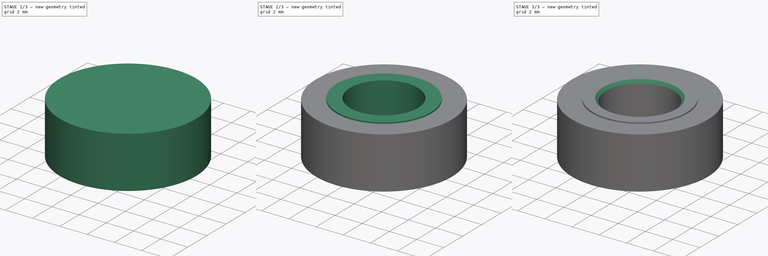
[diagram: build sequence overview — one tinted view per stage of 3, left to right]
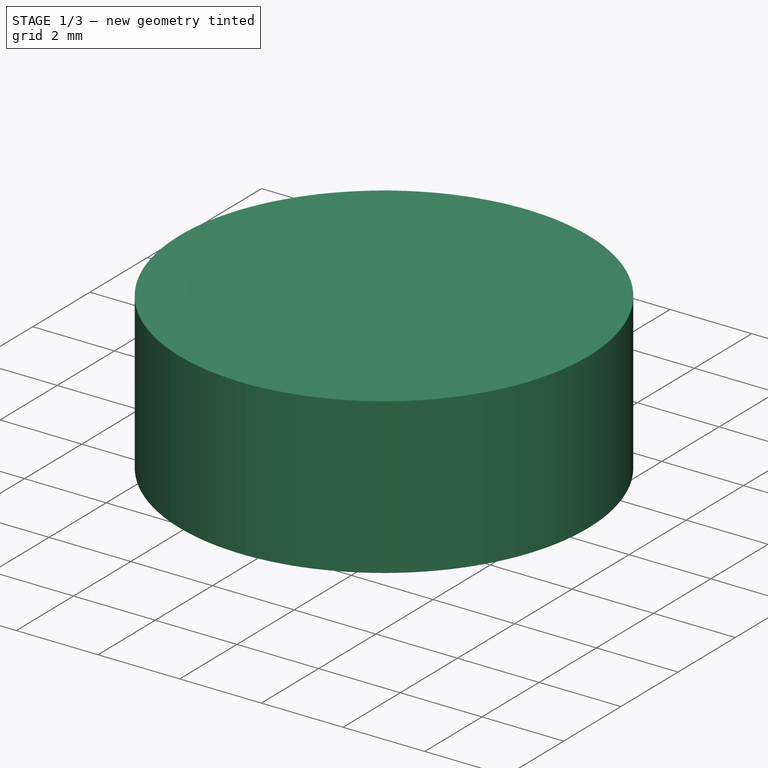
[diagram: stage 1 of 3 — iso view after this stage's code; geometry added in this stage tinted green]
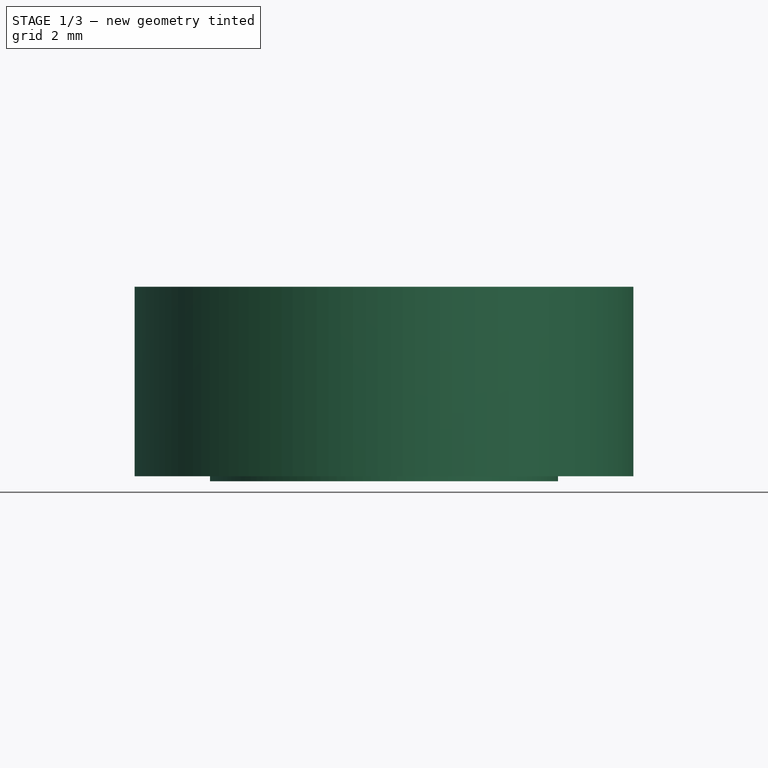
[diagram: stage 1 of 3 — front view after this stage's code; geometry added in this stage tinted green]
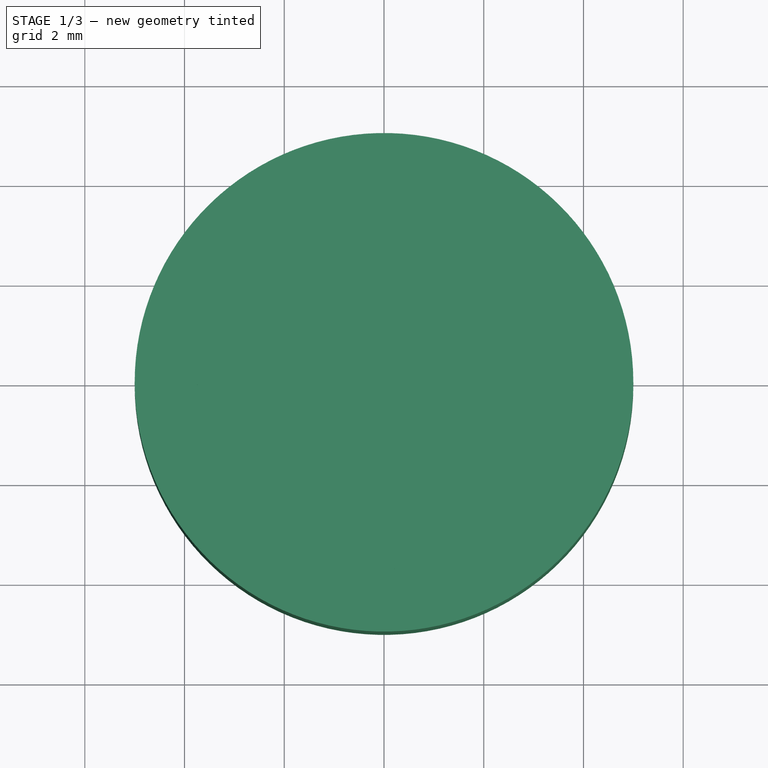
[diagram: stage 1 of 3 — top view after this stage's code; geometry added in this stage tinted green]
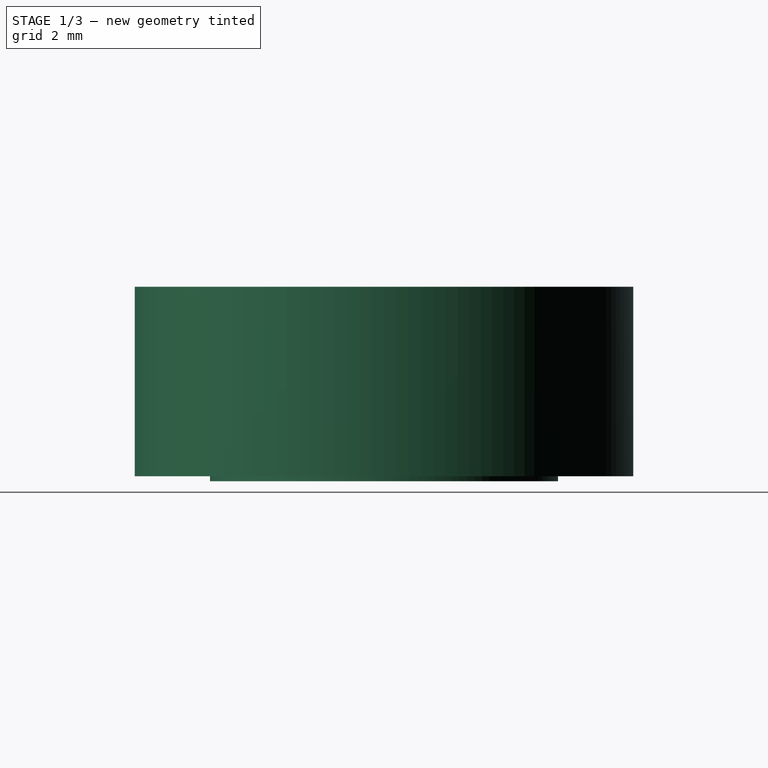
[diagram: stage 1 of 3 — right view after this stage's code; geometry added in this stage tinted green]
FCSTD DOCUMENT  (FreeCAD 0.14R3310 (Git))
Label: 61. RODAMIENTO MP2453 (RADIAL BALL BEARINGS 7804K136)
License: CC-BY 3.0
LicenseURL: http://creativecommons.org/licenses/by/3.0/
objects: Sketcher::SketchObject×5, PartDesign::Revolution×2, PartDesign::Pad×2, Part::Sphere×1, Part::FeaturePython×1, PartDesign::Pocket×1, PartDesign::Chamfer×1
note: 18 computed .brp shape members not serialized (recipe doc carries the construction recipe); baked Part::Feature solids carry a one-line shape summary decoded from their .brp

FEATURE [Sketcher::SketchObject] Sketch
  Placement = pos=(0,0,0) rot=(-1,0,0;4.71239rad)
  sketch-geometry (7):
    g0: LineSegment StartX=0 StartY=1.9 StartZ=0 EndX=-3.75 EndY=1.9 EndZ=0
    g1: LineSegment [constr] StartX=-3.75 StartY=1.9 StartZ=0 EndX=-3.75 EndY=-1.9 EndZ=0
    g2: LineSegment StartX=-3.75 StartY=-1.9 StartZ=0 EndX=0 EndY=-1.9 EndZ=0
    g3: LineSegment StartX=0 StartY=-1.9 StartZ=0 EndX=0 EndY=1.9 EndZ=0
    g4: ArcOfCircle CenterX=-3.75 CenterY=0 CenterZ=0 NormalX=0 NormalY=0 NormalZ=1 Radius=0.94 StartAngle=4.71239 EndAngle=7.85398
    g5: LineSegment StartX=-3.75 StartY=1.9 StartZ=0 EndX=-3.75 EndY=0.94 EndZ=0
    g6: LineSegment StartX=-3.75 StartY=-0.94 StartZ=0 EndX=-3.75 EndY=-1.9 EndZ=0
  constraints (21):
    c: PointOnObject(g0,g-2)
    c: Horizontal(g0)
    c: Coincident(g0,g1)
    c: Vertical(g1)
    c: Coincident(g1,g2)
    c: PointOnObject(g2,g-2)
    c: Coincident(g2,g3)
    c: Coincident(g3,g0)
    c: Horizontal(g2)
    c: Symmetric(g1,g0,g-1)
    c: Distance(g1) = 3.8
    c: PointOnObject(g4,g1)
    c: PointOnObject(g4,g1)
    c: PointOnObject(g4,g1)
    c: PointOnObject(g4,g-1)
    c: Radius(g4) = 0.94
    c: Distance(g-1,g1) = 3.75
    c: Coincident(g5,g0)
    c: Coincident(g5,g4)
    c: Coincident(g6,g4)
    c: Coincident(g6,g1)
FEATURE [PartDesign::Revolution] Revolution
  Angle = 360
  Axis = (0,0,1)
  Base = (0,0,0)
  Placement = pos=(0,0,0) rot=(-1,0,0;4.71239rad)
  ReferenceAxis = -> Sketch [V_Axis]
  Sketch = -> Sketch
FEATURE [Sketcher::SketchObject] Sketch002
  Placement = pos=(0,0,-1.9) rot=(1,0,0;3.14159rad)
  Support = -> Revolution [Face2]
  sketch-geometry (1):
    g0: Circle CenterX=0 CenterY=0 CenterZ=0 NormalX=0 NormalY=0 NormalZ=1 Radius=3.49
  constraints (2):
    c: Coincident(g0,g-1)
    c: Radius(g0) = 3.49
FEATURE [PartDesign::Pad] Pad
  Length = 0.1
  Length2 = 100
  Placement = pos=(0,0,0) rot=(-1,0,0;4.71239rad)
  Sketch = -> Sketch002
  Type = 0
FEATURE [Sketcher::SketchObject] Sketch005
  Placement = pos=(0,0,0) rot=(1,0,0;1.5708rad)
  sketch-geometry (6):
    g0: LineSegment StartX=-3.75 StartY=1.9 StartZ=0 EndX=-3.75 EndY=0.94 EndZ=0
    g1: LineSegment StartX=-3.75 StartY=1.9 StartZ=0 EndX=-5 EndY=1.9 EndZ=0
    g2: LineSegment StartX=-5 StartY=1.9 StartZ=0 EndX=-5 EndY=-1.9 EndZ=0
    g3: LineSegment StartX=-3.75 StartY=-1.9 StartZ=0 EndX=-3.75 EndY=-0.94 EndZ=0
    g4: ArcOfCircle CenterX=-3.75 CenterY=0 CenterZ=0 NormalX=0 NormalY=0 NormalZ=1 Radius=0.94 StartAngle=1.5708 EndAngle=4.71239
    g5: LineSegment StartX=-3.75 StartY=-1.9 StartZ=0 EndX=-5 EndY=-1.9 EndZ=0
  constraints (19):
    c: Vertical(g0)
    c: Coincident(g0,g1)
    c: Horizontal(g1)
    c: Coincident(g1,g2)
    c: Vertical(g2)
    c: Vertical(g3)
    c: PointOnObject(g4,g-1)
    c: Coincident(g4,g0)
    c: Coincident(g4,g3)
    c: DistanceX(g-2,g4) = -3.75
    c: Radius(g4) = 0.94
    c: DistanceX(g-2,g0) = -3.75
    c: DistanceX(g-2,g3) = -3.75
    c: Symmetric(g0,g3,g-1)
    c: Distance(g0,g3) = 3.8
    c: Coincident(g5,g3)
    c: Coincident(g5,g2)
    c: Horizontal(g5)
    c: DistanceX(g-2,g1) = -5
FEATURE [PartDesign::Revolution] Revolution001
  Angle = 360
  Axis = (0,0,1)
  Base = (0,0,0)
  Placement = pos=(0,0,0) rot=(1,0,0;1.5708rad)
  ReferenceAxis = -> Sketch005 [V_Axis]
  Sketch = -> Sketch005
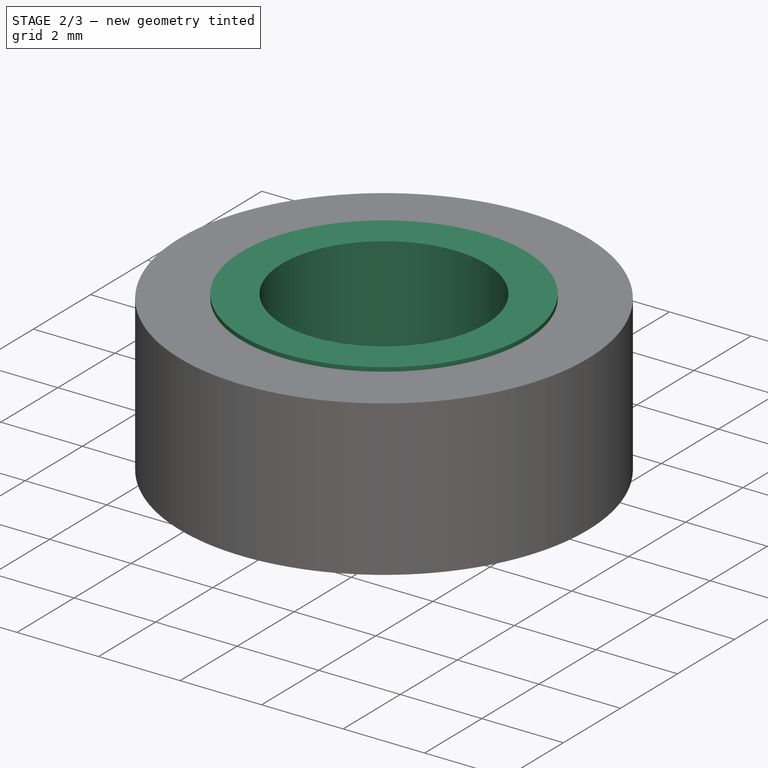
[diagram: stage 2 of 3 — iso view after this stage's code; geometry added in this stage tinted green]
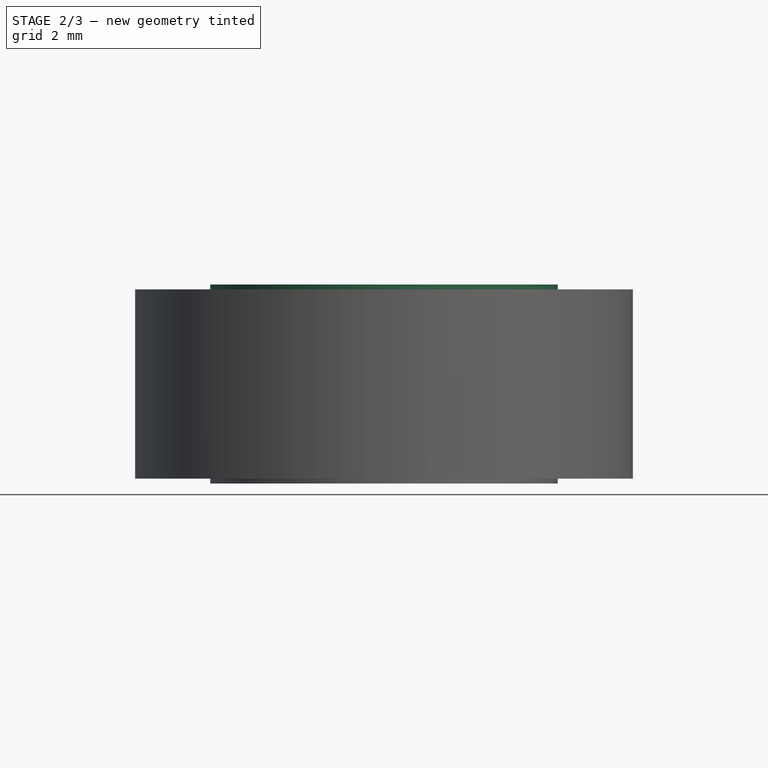
[diagram: stage 2 of 3 — front view after this stage's code; geometry added in this stage tinted green]
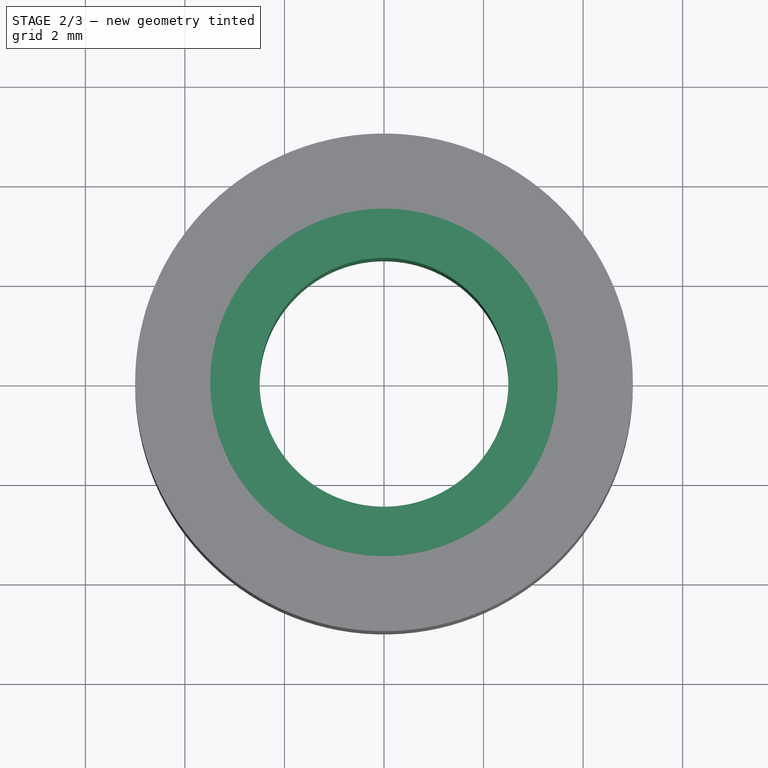
[diagram: stage 2 of 3 — top view after this stage's code; geometry added in this stage tinted green]
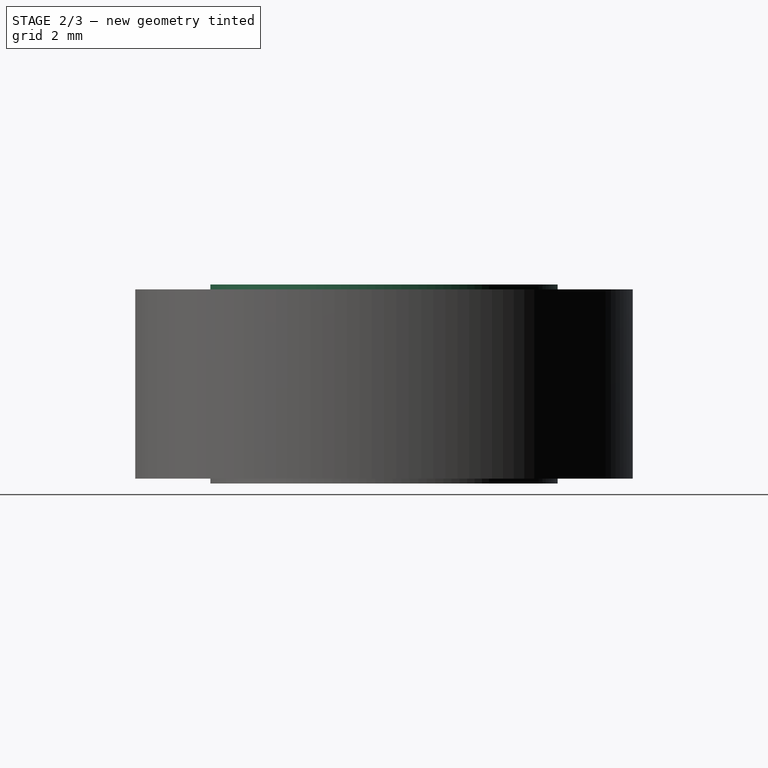
[diagram: stage 2 of 3 — right view after this stage's code; geometry added in this stage tinted green]
FEATURE [Sketcher::SketchObject] Sketch003
  Placement = pos=(0,0,1.9) rot=(0,0,1;3.14159rad)
  Support = -> Pad [Face6]
  sketch-geometry (1):
    g0: Circle CenterX=0 CenterY=0 CenterZ=0 NormalX=0 NormalY=0 NormalZ=1 Radius=3.49
  constraints (2):
    c: Coincident(g0,g-1)
    c: Radius(g0) = 3.49
FEATURE [PartDesign::Pad] Pad001
  Length = 0.1
  Length2 = 100
  Placement = pos=(0,0,0) rot=(-1,0,0;4.71239rad)
  Sketch = -> Sketch003
  Type = 0
FEATURE [Sketcher::SketchObject] Sketch004
  Placement = pos=(0,0,2) rot=(0,0,1;3.14159rad)
  Support = -> Pad001 [Face9]
  sketch-geometry (1):
    g0: Circle CenterX=0 CenterY=0 CenterZ=0 NormalX=0 NormalY=0 NormalZ=1 Radius=2.5
  constraints (2):
    c: Coincident(g0,g-1)
    c: Radius(g0) = 2.5
FEATURE [PartDesign::Pocket] Pocket
  Length = 5
  Placement = pos=(0,0,0) rot=(-1,0,0;4.71239rad)
  Sketch = -> Sketch004
  Type = 0
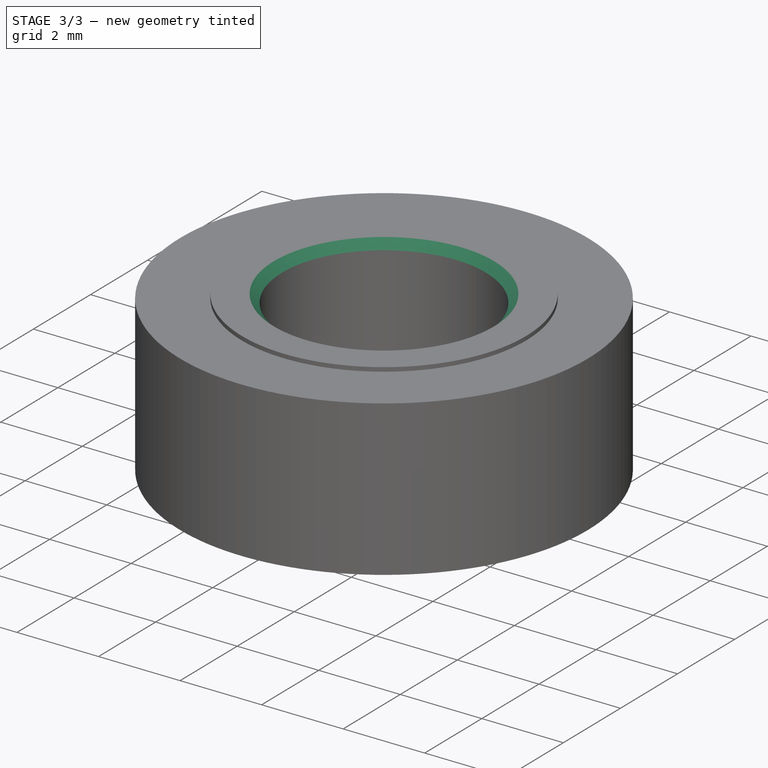
[diagram: stage 3 of 3 — iso view after this stage's code; geometry added in this stage tinted green]
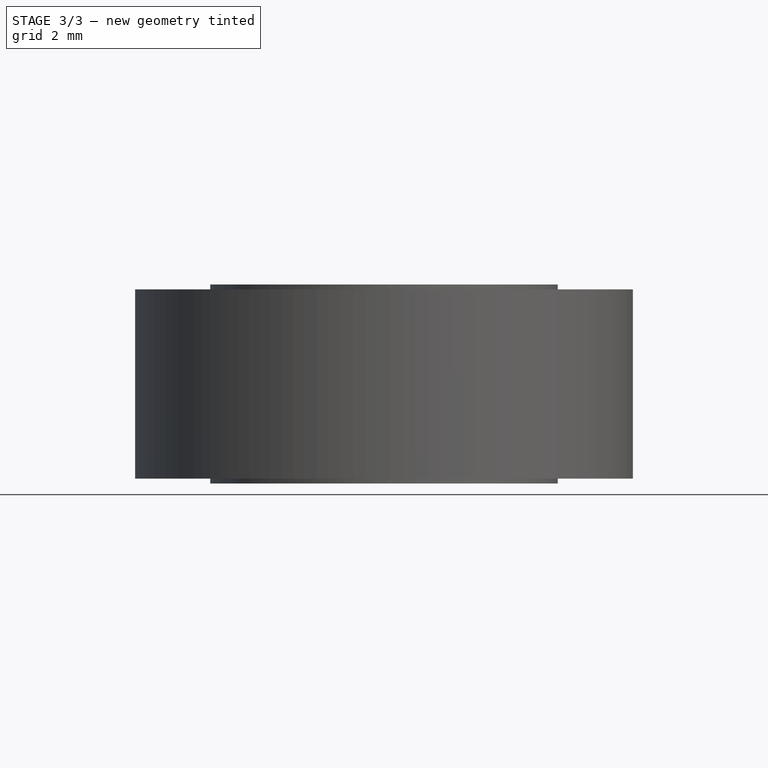
[diagram: stage 3 of 3 — front view after this stage's code; geometry added in this stage tinted green]
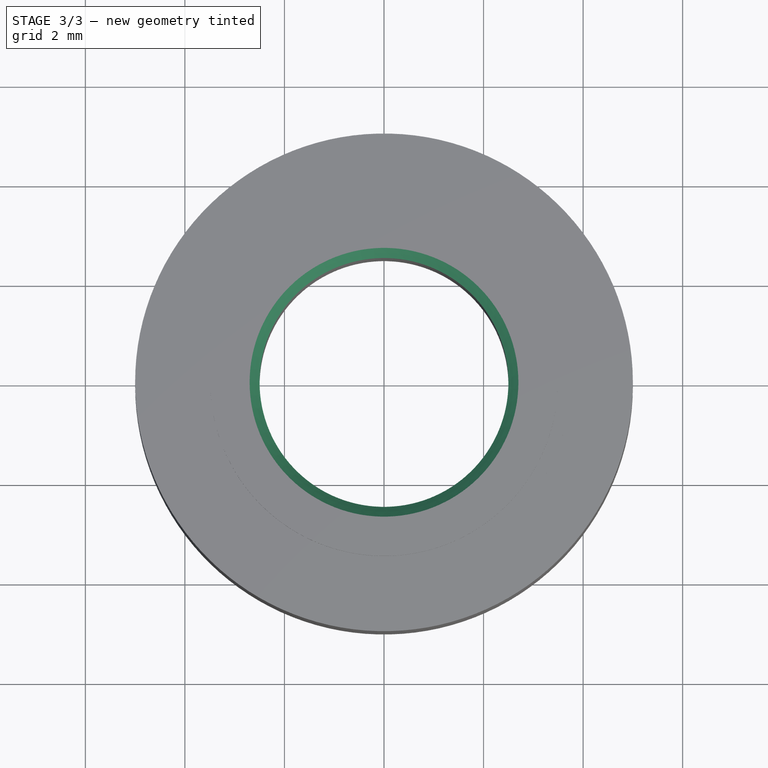
[diagram: stage 3 of 3 — top view after this stage's code; geometry added in this stage tinted green]
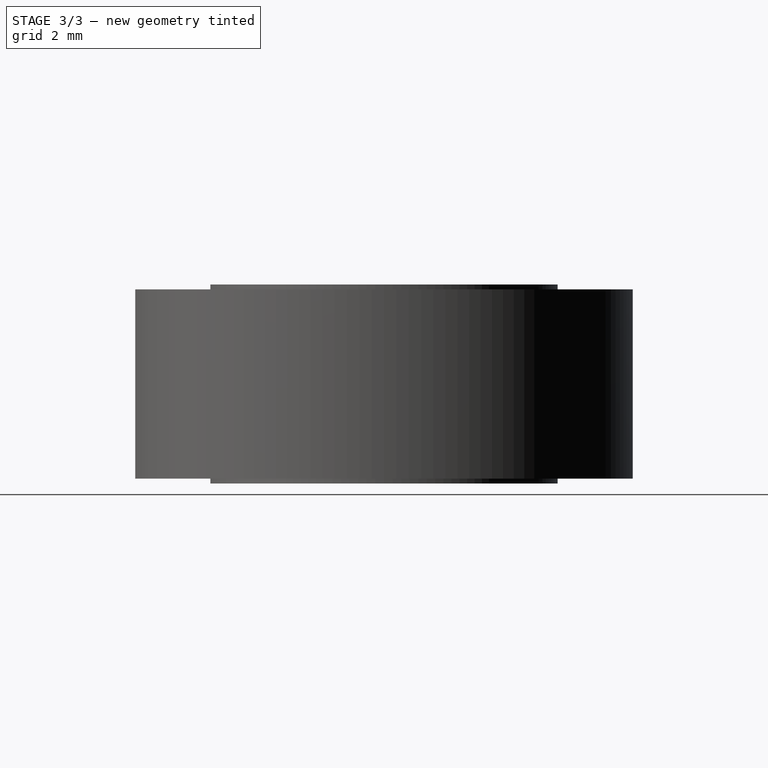
[diagram: stage 3 of 3 — right view after this stage's code; geometry added in this stage tinted green]
FEATURE [Part::Sphere] Sphere  label="Esféra"
  Angle1 = -90
  Angle2 = 90
  Angle3 = 360
  Placement = pos=(0,3.75,0) rot=(0,0,1;0rad)
  Radius = 0.93
FEATURE [Part::FeaturePython] Array  # Draft array (typed FeaturePython)
  Angle = 360
  ArrayType = 1
  Axis = (0,0,1)
  Base = -> Sphere
  Center = (0,0,0)
  IntervalX = (1,0,0)
  IntervalY = (0,1,0)
  IntervalZ = (0,0,1)
  NumberPolar = 12
  NumberX = 2
  NumberY = 2
  NumberZ = 1
FEATURE [PartDesign::Chamfer] Chamfer
  Base = -> Pocket [Edge12,Edge15]
  Placement = pos=(0,0,0) rot=(-1,0,0;4.71239rad)
  Size = 0.2
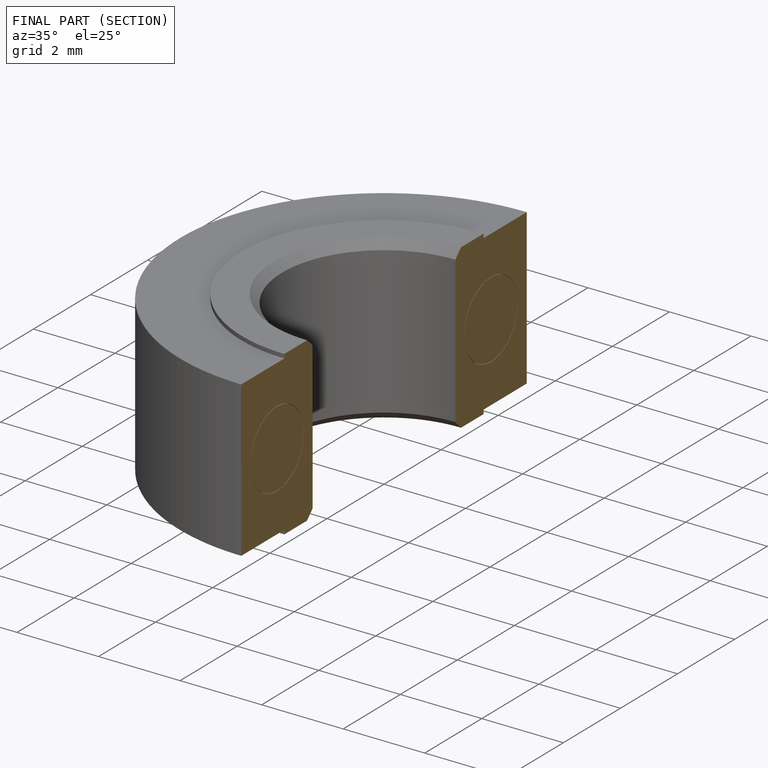
[diagram: finished part — half-section view (interior)]
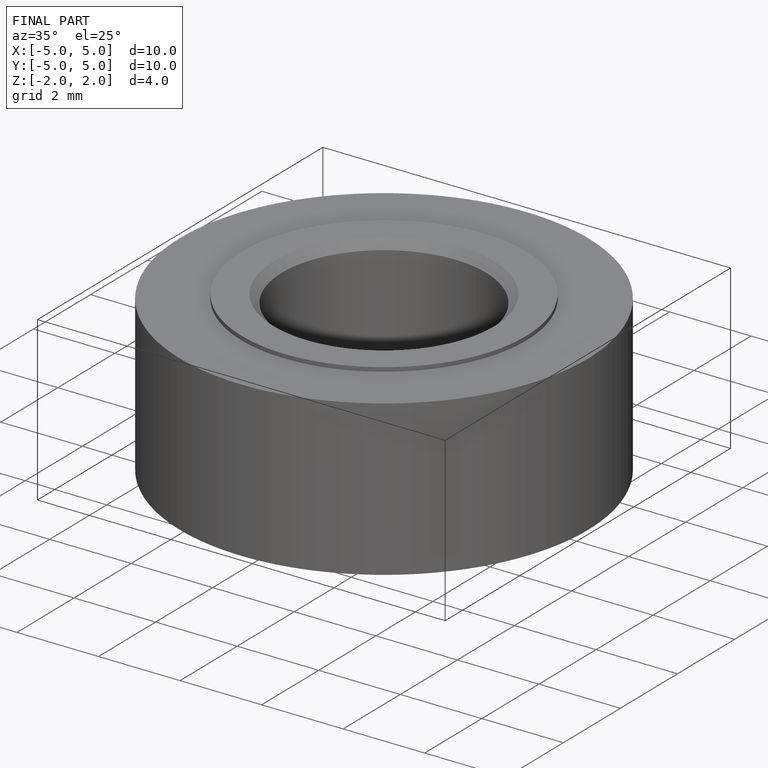
[diagram: finished part — iso view with bounding-box wireframe]
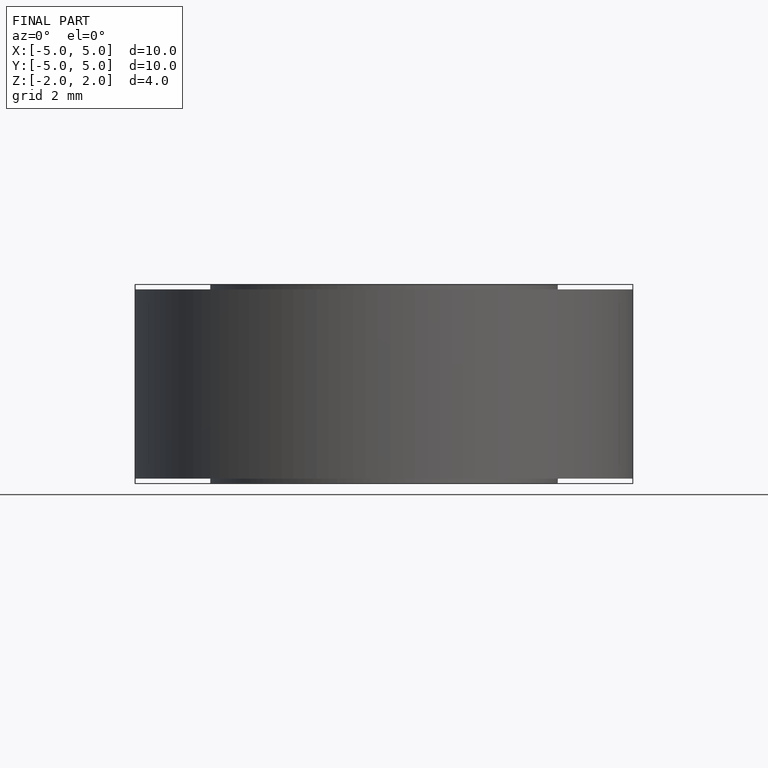
[diagram: finished part — front view with bounding-box wireframe]
